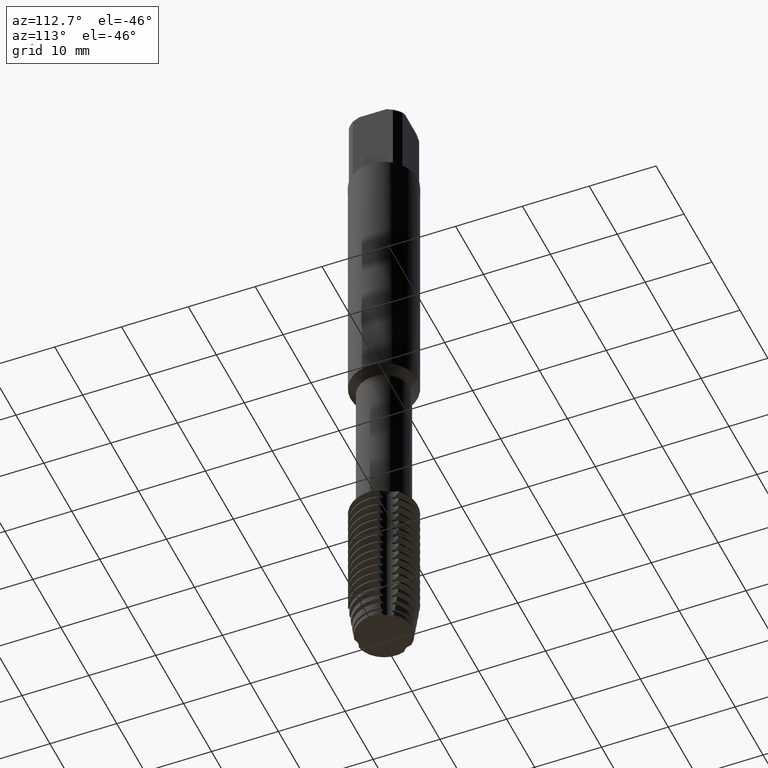
[diagram: clean part render]
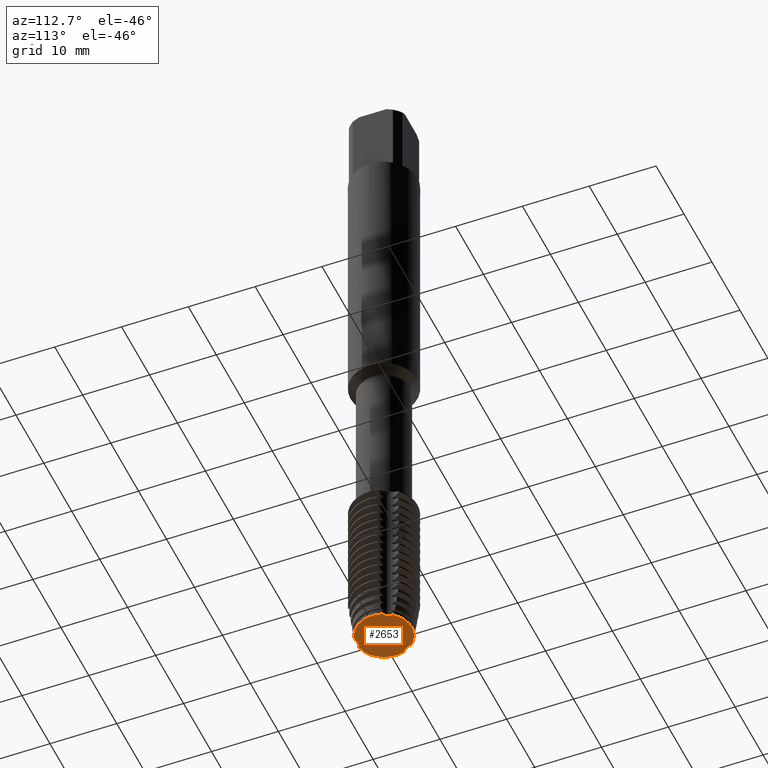
[diagram: same view with one face highlighted and labeled with its STEP entity id]
A machine part, auxiliary view. The second image highlights one B-rep face of the part: STEP entity #2653.
In plain terms, the highlighted planar face has unit normal (0, 0, -1).
Its self-contained STEP definition (entity closure, byte-faithful):
#2353=VERTEX_POINT('',#6457);
#2653=ADVANCED_FACE('',(#6790),#6791,.T.);
#2875=VERTEX_POINT('',#7031);
#3087=VERTEX_POINT('',#7262);
#3581=VERTEX_POINT('',#7796);
#3595=VERTEX_POINT('',#7812);
#4351=EDGE_CURVE('',#5793,#6031,#8626,.T.);
#4391=EDGE_CURVE('',#3087,#2875,#8670,.T.);
#4981=EDGE_CURVE('',#2875,#5793,#9311,.T.);
#5237=EDGE_CURVE('',#2353,#3581,#9591,.T.);
#5517=EDGE_CURVE('',#3595,#2353,#9898,.T.);
#5613=EDGE_CURVE('',#6031,#3595,#10005,.T.);
#5659=EDGE_CURVE('',#3581,#3087,#10058,.T.);
#5793=VERTEX_POINT('',#10201);
#6031=VERTEX_POINT('',#10465);
#6457=CARTESIAN_POINT('',(-5.11273152720843E-016,4.175,-100.0));
#6790=FACE_OUTER_BOUND('',#11557,.T.);
#6791=PLANE('',#11558);
#7031=CARTESIAN_POINT('',(0.805680293410188,-4.09652343637998,-100.0));
#7262=CARTESIAN_POINT('',(3.95053350980849,1.35052211676827,-100.0));
#7796=CARTESIAN_POINT('',(3.1448532163983,2.74600131961172,-100.0));
#7812=CARTESIAN_POINT('',(-3.1448532163983,2.74600131961171,-100.0));
#8626=CIRCLE('',#14897,4.175);
#8670=CIRCLE('',#14969,4.175);
#9311=CIRCLE('',#16063,1.62262599625241);
#9591=CIRCLE('',#16531,4.175);
#9898=CIRCLE('',#17125,4.175);
#10005=CIRCLE('',#17306,1.62262599625241);
#10058=CIRCLE('',#17416,1.62262599625241);
#10201=CARTESIAN_POINT('',(-0.805680293410188,-4.09652343637998,-100.0));
#10465=CARTESIAN_POINT('',(-3.95053350980849,1.35052211676827,-100.0));
#11557=EDGE_LOOP('',(#19111,#19112,#19113,#19114,#19115,#19116,#19117));
#11558=AXIS2_PLACEMENT_3D('',#19118,#19119,#19120);
#14897=AXIS2_PLACEMENT_3D('',#21109,#21110,#21111);
#14969=AXIS2_PLACEMENT_3D('',#21282,#21283,#21284);
#16063=AXIS2_PLACEMENT_3D('',#21938,#21939,#21940);
#16531=AXIS2_PLACEMENT_3D('',#22246,#22247,#22248);
#17125=AXIS2_PLACEMENT_3D('',#22608,#22609,#22610);
#17306=AXIS2_PLACEMENT_3D('',#22726,#22727,#22728);
#17416=AXIS2_PLACEMENT_3D('',#22804,#22805,#22806);
#19111=ORIENTED_EDGE('',*,*,#5613,.T.);
#19112=ORIENTED_EDGE('',*,*,#5517,.T.);
#19113=ORIENTED_EDGE('',*,*,#5237,.T.);
#19114=ORIENTED_EDGE('',*,*,#5659,.T.);
#19115=ORIENTED_EDGE('',*,*,#4391,.T.);
#19116=ORIENTED_EDGE('',*,*,#4981,.T.);
#19117=ORIENTED_EDGE('',*,*,#4351,.T.);
#19118=CARTESIAN_POINT('',(0.0,2.0875,-100.0));
#19119=DIRECTION('',(0.0,0.0,-1.0));
#19120=DIRECTION('',(0.0,1.0,0.0));
#21109=CARTESIAN_POINT('',(0.0,0.0,-100.0));
#21110=DIRECTION('',(0.0,0.0,-1.0));
#21111=DIRECTION('',(0.0,1.0,0.0));
#21282=CARTESIAN_POINT('',(0.0,0.0,-100.0));
#21283=DIRECTION('',(0.0,0.0,-1.0));
#21284=DIRECTION('',(0.0,1.0,0.0));
#21938=CARTESIAN_POINT('',(-2.22044604925031E-016,-5.50499579625241,-100.0));
#21939=DIRECTION('',(0.0,-0.0,1.0));
#21940=DIRECTION('',(-0.955572805775117,0.294755174446643,0.0));
#22246=CARTESIAN_POINT('',(0.0,0.0,-100.0));
#22247=DIRECTION('',(0.0,0.0,-1.0));
#22248=DIRECTION('',(0.0,1.0,0.0));
#22608=CARTESIAN_POINT('',(0.0,0.0,-100.0));
#22609=DIRECTION('',(0.0,0.0,-1.0));
#22610=DIRECTION('',(0.0,1.0,0.0));
#22726=CARTESIAN_POINT('',(-4.76746620728114,2.75249789812621,-100.0));
#22727=DIRECTION('',(0.0,-0.0,1.0));
#22728=DIRECTION('',(0.733051871855265,0.680172737743503,0.0));
#22804=CARTESIAN_POINT('',(4.76746620728113,2.75249789812621,-100.0));
#22805=DIRECTION('',(-0.0,0.0,1.0));
#22806=DIRECTION('',(0.222520933919852,-0.974927912190146,0.0));